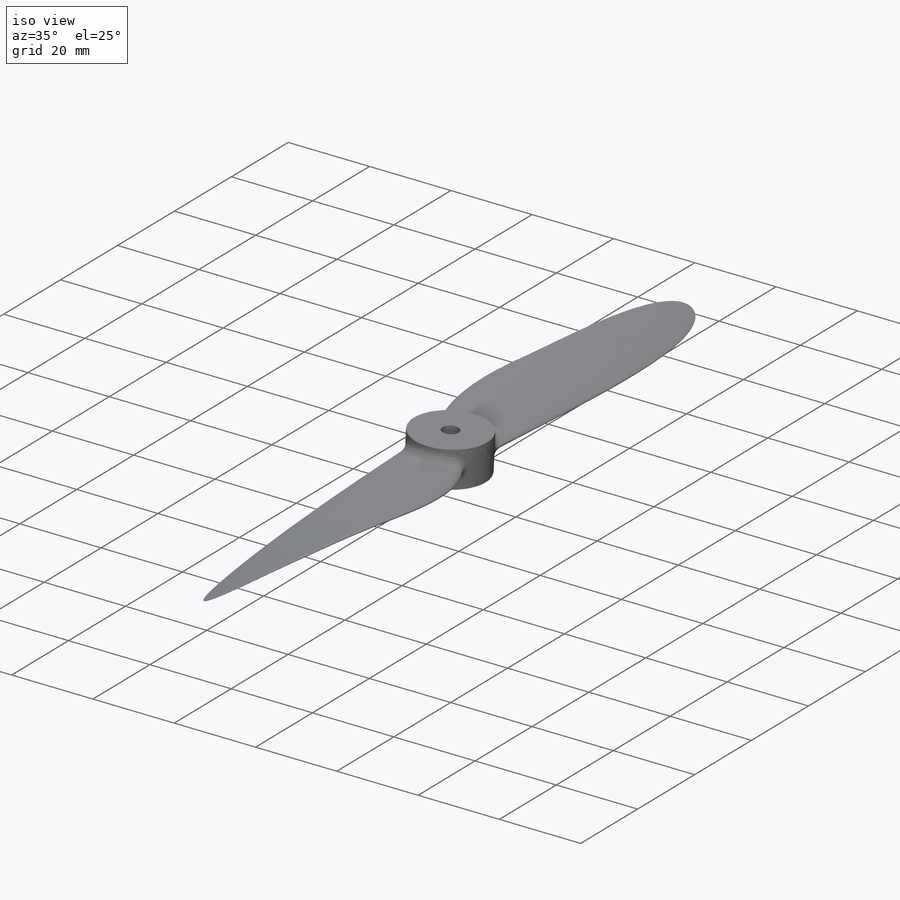
[diagram: iso view]
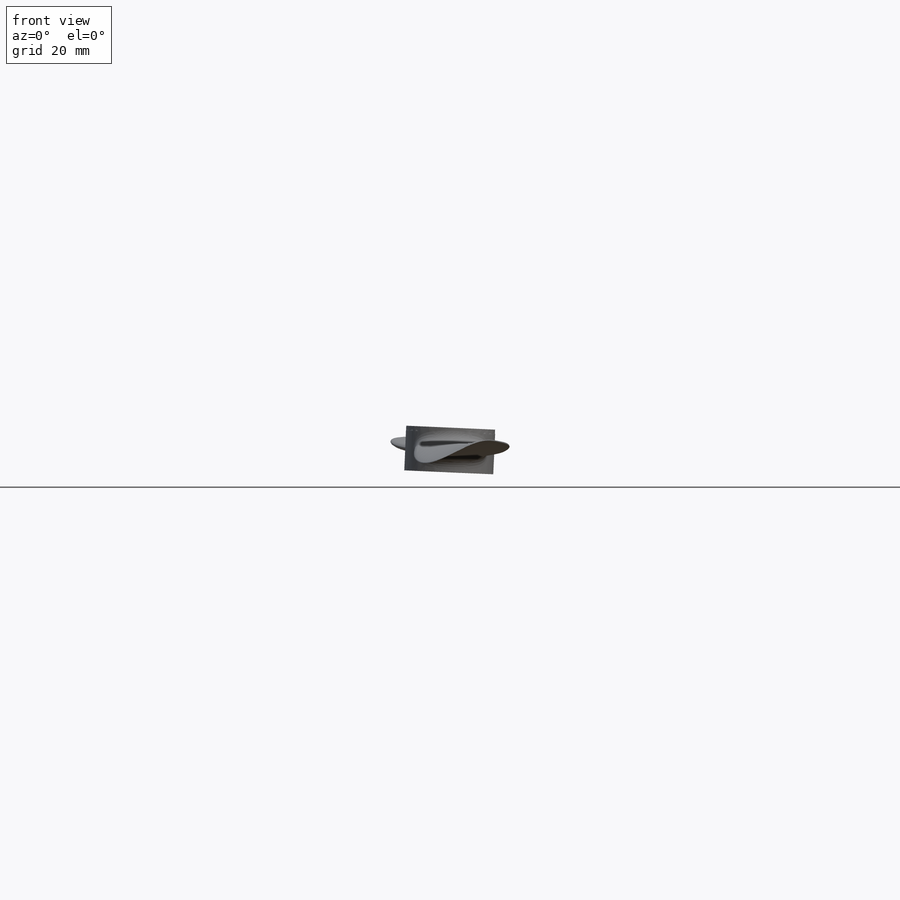
[diagram: front view]
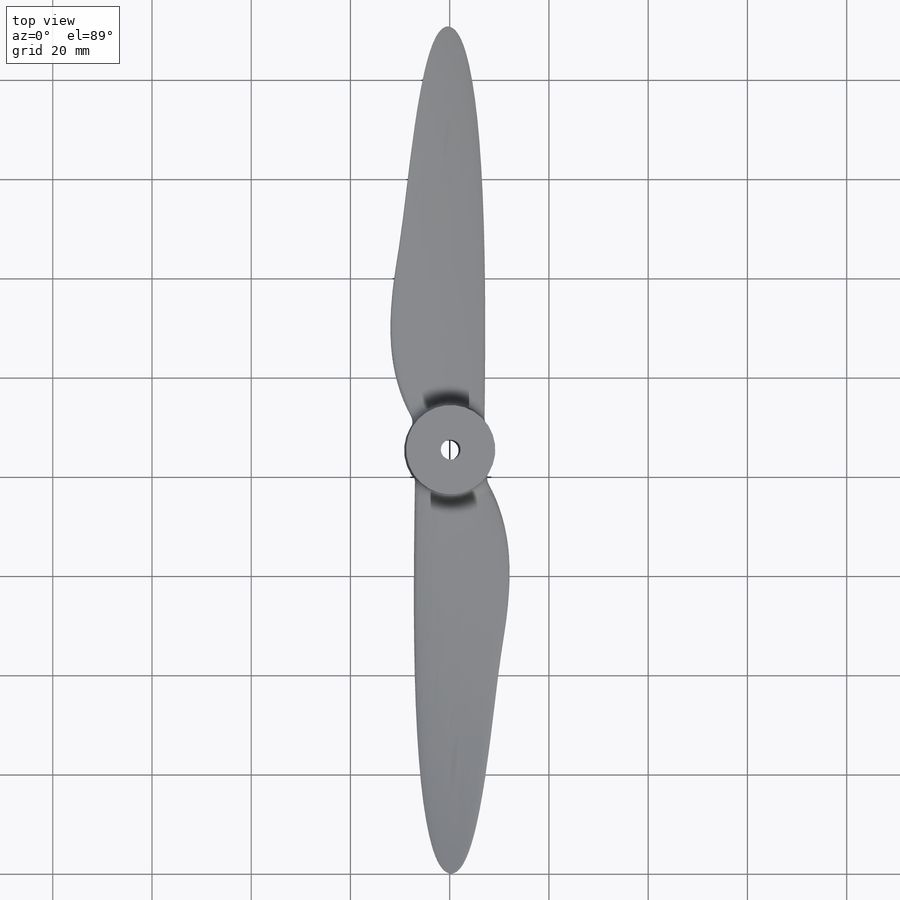
[diagram: top view]
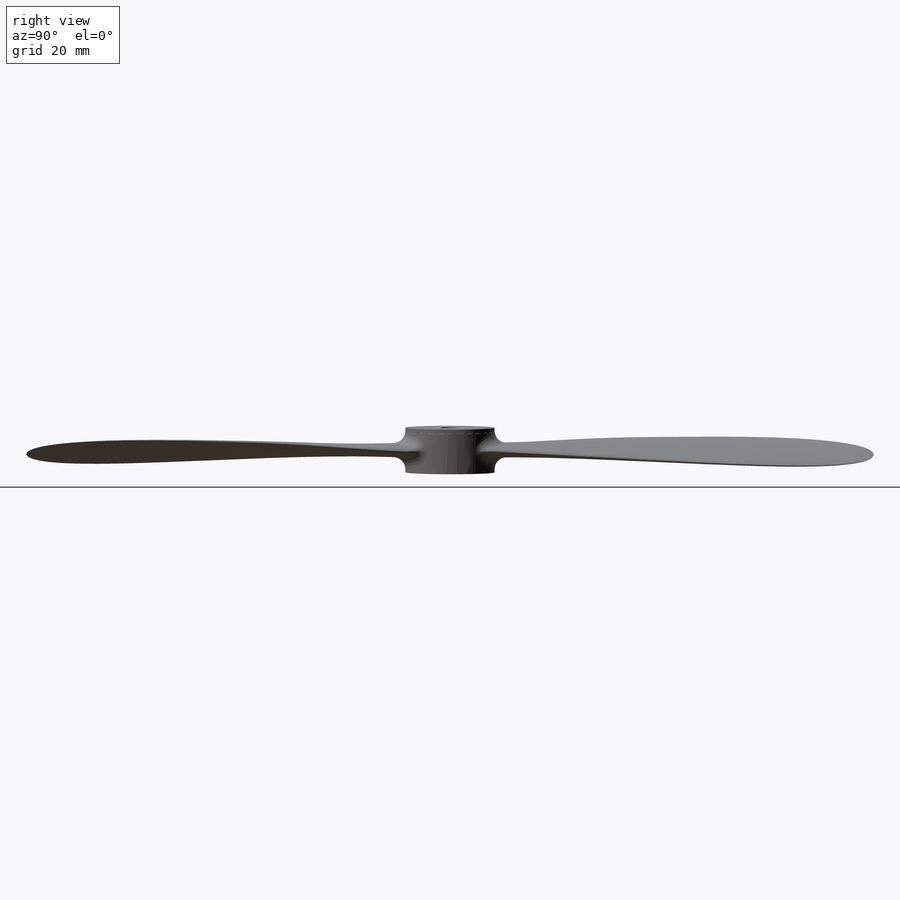
[diagram: right view]
SOLIDWORKS PART (.sldprt)
format: sldprt  version: not decoded by parser v0  size: 1,518,592 bytes
history: native  units: mm
features: sketch x4, fillet x2, material x1, plane x1, extrude x1, pattern_circular x1 (+13 scaffold rows collapsed)
feature tree (23):
  scaffold x13  (default folders/planes/origin — collapsed)
  material  "Material <not specified>"
  sketch  "Sketch1"  dims[D1=1.5mm]
  plane  "Plane1"  Offset=80mm
  sketch  "Sketch3"
  sketch  "Sketch6"
  sketch  "Sketch7"  dims[D1=18.0mm D2=4.0mm]
  extrude  "Boss-Extrude1"  Depth=9mm
  fillet  "Fillet7"  Radius=2.5mm
  pattern_circular  "CirPattern7"  Count=2  [1 undecoded]
  fillet  "Fillet8"  Radius=1mm
decode coverage: 6 of 8 modeling features carry decoded parameters
note: 1 parameter value undecoded
note: suppression state not decoded; provenance and decode notes live in map.json
